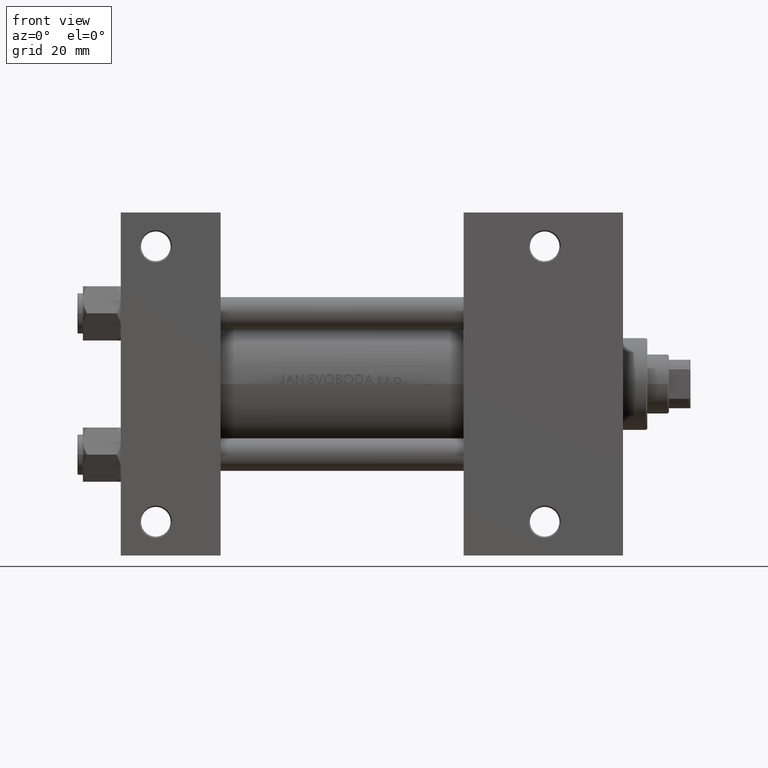
[diagram: clean part render]
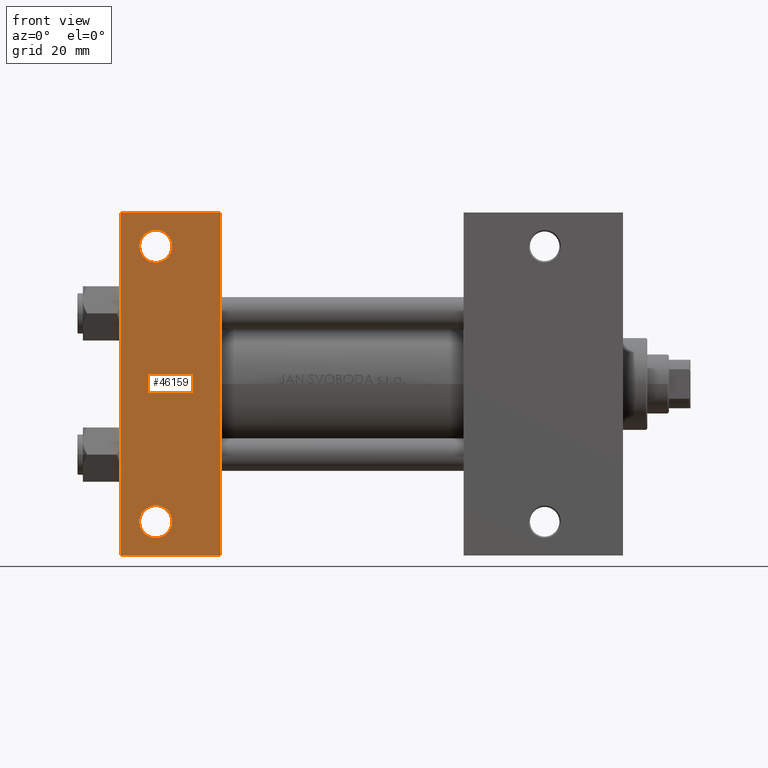
[diagram: same view with one face highlighted and labeled with its STEP entity id]
A machine part, front view. The second image highlights one B-rep face of the part: STEP entity #46159.
In plain terms, the highlighted planar face has unit normal (0, -1, -0).
Its self-contained STEP definition (entity closure, byte-faithful):
#784 = DIRECTION ( 'NONE',  ( 0.000000000000000000, 1.000000000000000000, 9.251858538542972814E-17 ) ) ;
#1355 = CARTESIAN_POINT ( 'NONE',  ( 7.000500000000034362, 50.99999999999999289, -37.50000000000000000 ) ) ;
#1469 = ORIENTED_EDGE ( 'NONE', *, *, #10062, .T. ) ;
#2102 = CARTESIAN_POINT ( 'NONE',  ( 12.99999999999999822, -51.00000000000001421, -37.50000000000000711 ) ) ;
#2103 = ORIENTED_EDGE ( 'NONE', *, *, #40084, .T. ) ;
#2791 = DIRECTION ( 'NONE',  ( 0.000000000000000000, -1.000000000000000000, -9.251858538542972814E-17 ) ) ;
#3967 = CARTESIAN_POINT ( 'NONE',  ( 18.99949999999998695, -51.00000000000001421, -37.50000000000000711 ) ) ;
#5021 = CARTESIAN_POINT ( 'NONE',  ( 37.00000000000000000, 37.49999999999999289, -37.50000000000000000 ) ) ;
#5333 = CARTESIAN_POINT ( 'NONE',  ( 12.99999999999999822, 50.99999999999999289, -37.50000000000000000 ) ) ;
#6039 = CARTESIAN_POINT ( 'NONE',  ( 7.000500000000006828, -51.00000000000001421, -37.50000000000000711 ) ) ;
#7073 = CIRCLE ( 'NONE', #34856, 5.999499999999962974 ) ;
#7718 = CARTESIAN_POINT ( 'NONE',  ( 18.99949999999996209, 50.99999999999999289, -37.50000000000000000 ) ) ;
#7907 = CIRCLE ( 'NONE', #42078, 5.999499999999990507 ) ;
#8670 = ORIENTED_EDGE ( 'NONE', *, *, #46840, .T. ) ;
#8885 = DIRECTION ( 'NONE',  ( 0.000000000000000000, 1.000000000000000000, 0.000000000000000000 ) ) ;
#9412 = LINE ( 'NONE', #13640, #47492 ) ;
#10062 = EDGE_CURVE ( 'NONE', #24527, #31140, #11556, .T. ) ;
#10174 = VECTOR ( 'NONE', #2791, 1000.000000000000000 ) ;
#10524 = DIRECTION ( 'NONE',  ( 0.000000000000000000, 1.000000000000000000, 0.000000000000000000 ) ) ;
#11086 = CARTESIAN_POINT ( 'NONE',  ( 37.00000000000000000, -63.50000000000000000, -37.49999999999999289 ) ) ;
#11317 = CARTESIAN_POINT ( 'NONE',  ( 3.977209754999747208E-16, -63.50000000000000000, -37.49999999999999289 ) ) ;
#11556 = CIRCLE ( 'NONE', #48948, 5.999499999999990507 ) ;
#12000 = FACE_BOUND ( 'NONE', #14786, .T. ) ;
#12490 = FACE_OUTER_BOUND ( 'NONE', #32586, .T. ) ;
#12789 = EDGE_CURVE ( 'NONE', #47996, #46394, #17230, .T. ) ;
#13640 = CARTESIAN_POINT ( 'NONE',  ( 1.595073532467135441E-14, 63.50000000000000000, -37.50000000000002132 ) ) ;
#14445 = DIRECTION ( 'NONE',  ( 0.000000000000000000, -1.000000000000000000, -9.251858538542972814E-17 ) ) ;
#14447 = CARTESIAN_POINT ( 'NONE',  ( 3.977209754999747208E-16, -63.50000000000000000, -37.49999999999999289 ) ) ;
#14786 = EDGE_LOOP ( 'NONE', ( #42716, #47157 ) ) ;
#17230 = CIRCLE ( 'NONE', #41049, 5.999499999999962974 ) ;
#17516 = CARTESIAN_POINT ( 'NONE',  ( 37.00000000000001421, 63.50000000000000000, -37.50000000000002132 ) ) ;
#17658 = VERTEX_POINT ( 'NONE', #45328 ) ;
#18906 = VECTOR ( 'NONE', #34674, 1000.000000000000000 ) ;
#20779 = DIRECTION ( 'NONE',  ( 0.000000000000000000, 1.000000000000000000, 0.000000000000000000 ) ) ;
#21705 = CARTESIAN_POINT ( 'NONE',  ( 0.000000000000000000, 37.49999999999999289, -37.50000000000000000 ) ) ;
#22236 = VERTEX_POINT ( 'NONE', #11086 ) ;
#22392 = EDGE_CURVE ( 'NONE', #46394, #47996, #7073, .T. ) ;
#24527 = VERTEX_POINT ( 'NONE', #6039 ) ;
#26036 = ORIENTED_EDGE ( 'NONE', *, *, #40859, .F. ) ;
#26088 = EDGE_LOOP ( 'NONE', ( #1469, #8670 ) ) ;
#26199 = VERTEX_POINT ( 'NONE', #17516 ) ;
#27787 = DIRECTION ( 'NONE',  ( -0.000000000000000000, -9.251858538542972814E-17, 1.000000000000000000 ) ) ;
#29403 = VERTEX_POINT ( 'NONE', #14447 ) ;
#30313 = CARTESIAN_POINT ( 'NONE',  ( 37.00000000000000000, 37.49999999999999289, -37.50000000000000000 ) ) ;
#30882 = AXIS2_PLACEMENT_3D ( 'NONE', #5021, #35610, #784 ) ;
#31140 = VERTEX_POINT ( 'NONE', #3967 ) ;
#31499 = CARTESIAN_POINT ( 'NONE',  ( 12.99999999999999822, -51.00000000000001421, -37.50000000000000711 ) ) ;
#32586 = EDGE_LOOP ( 'NONE', ( #26036, #44630, #35243, #2103 ) ) ;
#33555 = LINE ( 'NONE', #30313, #45928 ) ;
#34674 = DIRECTION ( 'NONE',  ( -1.000000000000000000, -0.000000000000000000, -0.000000000000000000 ) ) ;
#34856 = AXIS2_PLACEMENT_3D ( 'NONE', #5333, #45119, #10524 ) ;
#35243 = ORIENTED_EDGE ( 'NONE', *, *, #39570, .T. ) ;
#35610 = DIRECTION ( 'NONE',  ( 0.000000000000000000, 9.251858538542972814E-17, -1.000000000000000000 ) ) ;
#38727 = EDGE_CURVE ( 'NONE', #17658, #26199, #9412, .T. ) ;
#39570 = EDGE_CURVE ( 'NONE', #26199, #22236, #33555, .T. ) ;
#40084 = EDGE_CURVE ( 'NONE', #22236, #29403, #45414, .T. ) ;
#40235 = DIRECTION ( 'NONE',  ( 1.000000000000000000, 0.000000000000000000, 0.000000000000000000 ) ) ;
#40859 = EDGE_CURVE ( 'NONE', #17658, #29403, #48122, .T. ) ;
#41049 = AXIS2_PLACEMENT_3D ( 'NONE', #47579, #47084, #43345 ) ;
#42078 = AXIS2_PLACEMENT_3D ( 'NONE', #31499, #27787, #8885 ) ;
#42598 = PLANE ( 'NONE',  #30882 ) ;
#42716 = ORIENTED_EDGE ( 'NONE', *, *, #12789, .T. ) ;
#43345 = DIRECTION ( 'NONE',  ( 0.000000000000000000, 1.000000000000000000, 0.000000000000000000 ) ) ;
#44630 = ORIENTED_EDGE ( 'NONE', *, *, #38727, .T. ) ;
#45119 = DIRECTION ( 'NONE',  ( -0.000000000000000000, -9.251858538542972814E-17, 1.000000000000000000 ) ) ;
#45328 = CARTESIAN_POINT ( 'NONE',  ( 1.595073532467135441E-14, 63.50000000000000000, -37.50000000000002132 ) ) ;
#45414 = LINE ( 'NONE', #11317, #18906 ) ;
#45928 = VECTOR ( 'NONE', #14445, 1000.000000000000000 ) ;
#46159 = ADVANCED_FACE ( 'NONE', ( #12000, #47080, #12490 ), #42598, .T. ) ;
#46394 = VERTEX_POINT ( 'NONE', #7718 ) ;
#46840 = EDGE_CURVE ( 'NONE', #31140, #24527, #7907, .T. ) ;
#47080 = FACE_BOUND ( 'NONE', #26088, .T. ) ;
#47084 = DIRECTION ( 'NONE',  ( -0.000000000000000000, -9.251858538542972814E-17, 1.000000000000000000 ) ) ;
#47157 = ORIENTED_EDGE ( 'NONE', *, *, #22392, .T. ) ;
#47492 = VECTOR ( 'NONE', #40235, 1000.000000000000000 ) ;
#47579 = CARTESIAN_POINT ( 'NONE',  ( 12.99999999999999822, 50.99999999999999289, -37.50000000000000000 ) ) ;
#47996 = VERTEX_POINT ( 'NONE', #1355 ) ;
#48122 = LINE ( 'NONE', #21705, #10174 ) ;
#48422 = DIRECTION ( 'NONE',  ( -0.000000000000000000, -9.251858538542972814E-17, 1.000000000000000000 ) ) ;
#48948 = AXIS2_PLACEMENT_3D ( 'NONE', #2102, #48422, #20779 ) ;